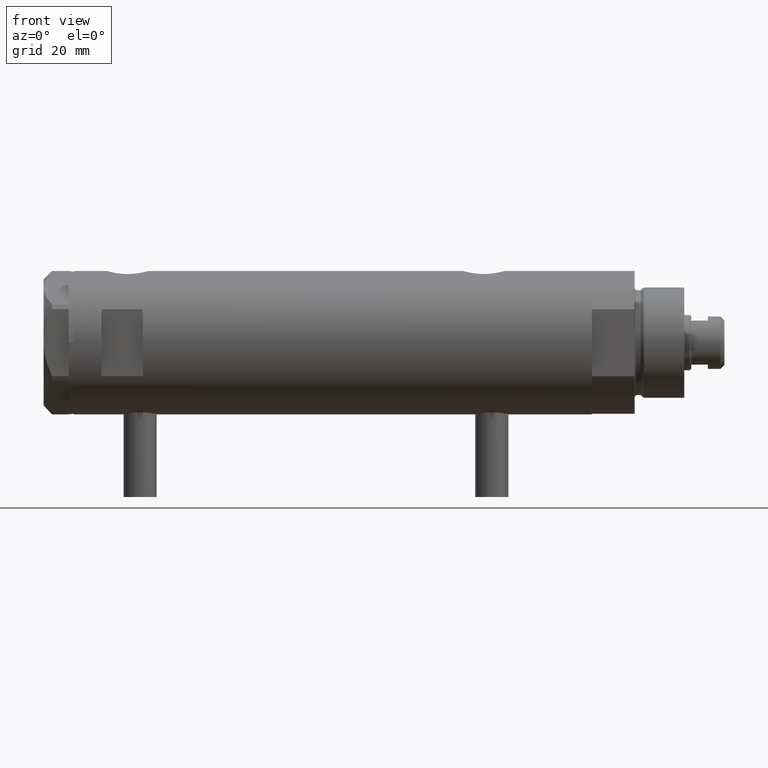
[diagram: clean part render]
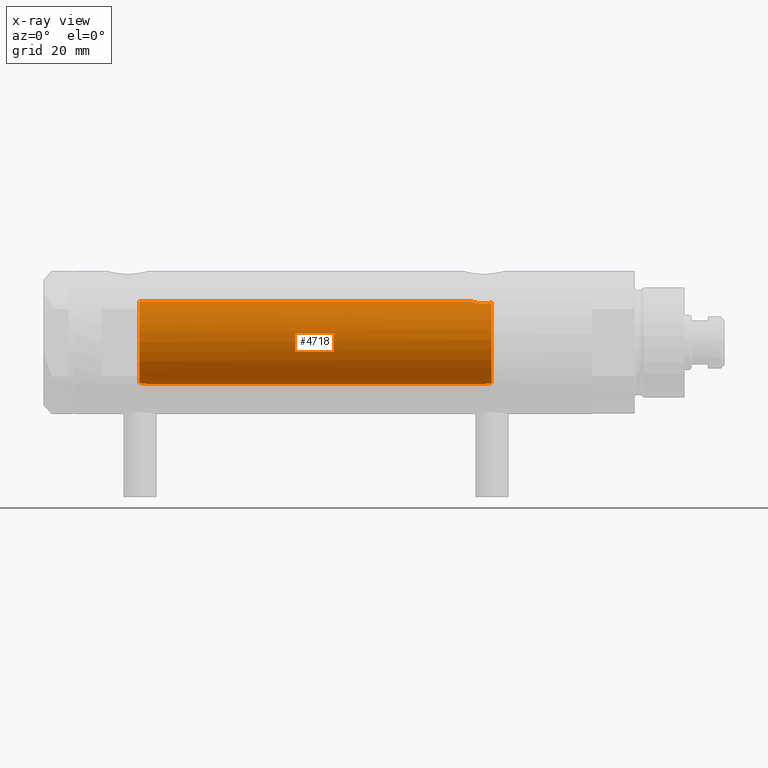
[diagram: x-ray — body ghosted, one internal face saturated and labeled with its STEP entity id]
A machine part, front view, then the same camera in x-ray: the body is ghosted and one INTERNAL B-rep face — a face not visible from any outside direction — is saturated and labeled: STEP entity #4718.
In plain terms, the highlighted cylindrical surface (partial cylindrical patch) has radius 15 mm, axis along (1, 0, -0).
Its self-contained STEP definition (entity closure, byte-faithful):
#3 = VERTEX_POINT ( 'NONE', #1093 ) ;
#35 = CARTESIAN_POINT ( 'NONE',  ( 14.39424372609267699, -4.221002267729138779, -57.17893131093291004 ) ) ;
#47 = VERTEX_POINT ( 'NONE', #3550 ) ;
#143 = CARTESIAN_POINT ( 'NONE',  ( -14.91608554980932233, -1.590576762727820004, 68.01369720243329198 ) ) ;
#155 = DIRECTION ( 'NONE',  ( -0.000000000000000000, -0.000000000000000000, -1.000000000000000000 ) ) ;
#157 = ORIENTED_EDGE ( 'NONE', *, *, #2194, .F. ) ;
#160 = VERTEX_POINT ( 'NONE', #435 ) ;
#169 = CARTESIAN_POINT ( 'NONE',  ( -14.94313933514151493, -1.312299271472201934, 67.81526966946925938 ) ) ;
#195 = CARTESIAN_POINT ( 'NONE',  ( -14.79053751558745589, -2.497999199359361544, -57.55000000000000426 ) ) ;
#196 = ORIENTED_EDGE ( 'NONE', *, *, #595, .F. ) ;
#245 = CARTESIAN_POINT ( 'NONE',  ( -14.79155164274526157, -2.491987158875418107, 70.15000000000000568 ) ) ;
#322 = CARTESIAN_POINT ( 'NONE',  ( 14.64727859494137618, -3.248701865452408910, -51.10174013696656914 ) ) ;
#354 = CARTESIAN_POINT ( 'NONE',  ( -14.80379558280398733, -2.418854260473054296, 69.29535450491660242 ) ) ;
#376 = CARTESIAN_POINT ( 'NONE',  ( 14.30602371879161794, -4.510400617436904902, -56.58665028800272978 ) ) ;
#435 = CARTESIAN_POINT ( 'NONE',  ( 14.82638779339053769, -2.275571356824481750, 70.15000000000000568 ) ) ;
#468 = CARTESIAN_POINT ( 'NONE',  ( 15.00000000000000000, 1.836970198721029589E-15, 93.95000000000001705 ) ) ;
#491 = CARTESIAN_POINT ( 'NONE',  ( 14.93900636919600089, -1.364886281976675386, 69.77622504971311912 ) ) ;
#499 = CARTESIAN_POINT ( 'NONE',  ( -15.00000000000000000, 0.000000000000000000, 93.95000000000001705 ) ) ;
#505 = CARTESIAN_POINT ( 'NONE',  ( -14.99999999999999822, -0.1716226368084279585, 67.45000000000001705 ) ) ;
#560 = CARTESIAN_POINT ( 'NONE',  ( 0.000000000000000000, 0.000000000000000000, -57.55000000000000426 ) ) ;
#576 = CARTESIAN_POINT ( 'NONE',  ( 0.000000000000000000, 0.000000000000000000, 93.95000000000001705 ) ) ;
#595 = EDGE_CURVE ( 'NONE', #3, #4072, #969, .T. ) ;
#605 = VERTEX_POINT ( 'NONE', #245 ) ;
#719 = CARTESIAN_POINT ( 'NONE',  ( 14.49994286062941562, -3.853373987417222590, -51.74743896782911179 ) ) ;
#742 = CARTESIAN_POINT ( 'NONE',  ( 14.33349657381506503, -4.422893686125040524, -56.78827841538882382 ) ) ;
#881 = CARTESIAN_POINT ( 'NONE',  ( -15.00000000000000000, 3.061618116097013428E-16, 67.45000000000001705 ) ) ;
#894 = DIRECTION ( 'NONE',  ( -1.000000000000000000, 0.000000000000000000, 0.000000000000000000 ) ) ;
#915 = CARTESIAN_POINT ( 'NONE',  ( 14.87720562886504005, -1.924385875533404233, 69.97741675737691480 ) ) ;
#924 = DIRECTION ( 'NONE',  ( -0.000000000000000000, -0.000000000000000000, -1.000000000000000000 ) ) ;
#956 = LINE ( 'NONE', #499, #4460 ) ;
#958 = DIRECTION ( 'NONE',  ( 0.000000000000000000, 0.000000000000000000, -1.000000000000000000 ) ) ;
#963 = CARTESIAN_POINT ( 'NONE',  ( -14.87260732106556560, -1.954338522023921332, 68.38146298750770313 ) ) ;
#969 = B_SPLINE_CURVE_WITH_KNOTS ( 'NONE', 3,
 ( #4686, #1091, #2684, #1917, #1894, #4640, #3491, #2311, #3099, #2287, #1117, #3938, #3516, #5131, #1534, #1041 ),
 .UNSPECIFIED., .F., .F.,
 ( 4, 2, 2, 2, 2, 2, 2, 4 ),
 ( 0.000000000000000000, 0.0004769863284873110182, 0.0009539726569746220363, 0.001430958985461933163, 0.001907945313949244073, 0.002384931642436555199, 0.002861917970923867193, 0.003815890627898489880 ),
 .UNSPECIFIED. ) ;
#980 = EDGE_LOOP ( 'NONE', ( #3953, #1914, #4259, #3457, #196, #157, #2738, #1272 ) ) ;
#989 = CARTESIAN_POINT ( 'NONE',  ( -14.95581892566389470, -1.161262481484107045, 67.72937042154404708 ) ) ;
#1041 = CARTESIAN_POINT ( 'NONE',  ( -14.79053751558745589, -2.497999199359361544, -57.55000000000000426 ) ) ;
#1091 = CARTESIAN_POINT ( 'NONE',  ( -15.00000000000000355, -0.1613061104920440469, -55.15000000000000568 ) ) ;
#1093 = CARTESIAN_POINT ( 'NONE',  ( -15.00000000000000000, 0.000000000000000000, -55.15000000000000568 ) ) ;
#1117 = CARTESIAN_POINT ( 'NONE',  ( -14.87290636797879984, -1.950714596786577326, -56.07831246618854948 ) ) ;
#1172 = DIRECTION ( 'NONE',  ( 0.000000000000000000, 0.000000000000000000, 1.000000000000000000 ) ) ;
#1182 = CARTESIAN_POINT ( 'NONE',  ( 15.00000000000000000, 5.959273468635536151E-16, -49.88499999999999801 ) ) ;
#1196 = CARTESIAN_POINT ( 'NONE',  ( 14.30772250772359833, -4.505024017690381299, -52.90010806953218037 ) ) ;
#1203 = CIRCLE ( 'NONE', #1789, 15.00000000000000000 ) ;
#1254 = CARTESIAN_POINT ( 'NONE',  ( -14.79155164274526157, -2.491987158875418107, 70.15000000000000568 ) ) ;
#1272 = ORIENTED_EDGE ( 'NONE', *, *, #3447, .T. ) ;
#1382 = DIRECTION ( 'NONE',  ( -1.000000000000000000, 0.000000000000000000, 0.000000000000000000 ) ) ;
#1417 = CARTESIAN_POINT ( 'NONE',  ( 15.00000000000000000, 5.959273468635536151E-16, -49.88499999999999801 ) ) ;
#1441 = EDGE_CURVE ( 'NONE', #605, #3424, #3194, .T. ) ;
#1534 = CARTESIAN_POINT ( 'NONE',  ( -14.79268570220017764, -2.485279885960844037, -57.23227165314103360 ) ) ;
#1535 = CARTESIAN_POINT ( 'NONE',  ( 14.23846660849503820, -4.718934182878723682, -55.95401121469809880 ) ) ;
#1563 = CARTESIAN_POINT ( 'NONE',  ( 14.25977760983849052, -4.654557688538888627, -53.31736805897653397 ) ) ;
#1564 = DIRECTION ( 'NONE',  ( 1.000000000000000000, 0.000000000000000000, 0.000000000000000000 ) ) ;
#1611 = VECTOR ( 'NONE', #2381, 1000.000000000000000 ) ;
#1640 = CARTESIAN_POINT ( 'NONE',  ( 14.46277203719950677, -3.978470183374504199, -57.55000000000000426 ) ) ;
#1725 = CARTESIAN_POINT ( 'NONE',  ( 14.81710879718118434, -2.343063746046468943, -50.48067662538954181 ) ) ;
#1754 = CARTESIAN_POINT ( 'NONE',  ( 14.98404828787190723, -0.7909490205761857684, 69.63356230794190083 ) ) ;
#1789 = AXIS2_PLACEMENT_3D ( 'NONE', #560, #958, #1382 ) ;
#1800 = CARTESIAN_POINT ( 'NONE',  ( -14.99695275358353719, -0.3460123648701089460, 67.46810396824248812 ) ) ;
#1894 = CARTESIAN_POINT ( 'NONE',  ( -14.98007298506453111, -0.7870736506658194687, -55.27174868555714937 ) ) ;
#1914 = ORIENTED_EDGE ( 'NONE', *, *, #2588, .T. ) ;
#1917 = CARTESIAN_POINT ( 'NONE',  ( -14.98749134158486740, -0.6320459414166014200, -55.22599747929444192 ) ) ;
#2060 = VERTEX_POINT ( 'NONE', #3481 ) ;
#2089 = CARTESIAN_POINT ( 'NONE',  ( 14.82638779339053769, -2.275571356824481750, 70.15000000000000568 ) ) ;
#2194 = EDGE_CURVE ( 'NONE', #3424, #3, #956, .T. ) ;
#2287 = CARTESIAN_POINT ( 'NONE',  ( -14.88625129008226722, -1.847379311388058998, -55.95812992433160815 ) ) ;
#2311 = CARTESIAN_POINT ( 'NONE',  ( -14.92627313122705779, -1.491421694539938336, -55.63730514635739866 ) ) ;
#2339 = CARTESIAN_POINT ( 'NONE',  ( -14.78989771875220072, -2.501882951377192299, 69.80631597653685105 ) ) ;
#2381 = DIRECTION ( 'NONE',  ( -0.000000000000000000, -0.000000000000000000, -1.000000000000000000 ) ) ;
#2450 = CIRCLE ( 'NONE', #3711, 15.00000000000000000 ) ;
#2485 = LINE ( 'NONE', #468, #1611 ) ;
#2498 = CARTESIAN_POINT ( 'NONE',  ( -14.82167156606024250, -2.306788152106011847, 68.97115114601642460 ) ) ;
#2501 = CARTESIAN_POINT ( 'NONE',  ( 14.92307637240704032, -1.532123959568890914, -50.12726557582076481 ) ) ;
#2539 = FACE_OUTER_BOUND ( 'NONE', #980, .T. ) ;
#2588 = EDGE_CURVE ( 'NONE', #2060, #4998, #2485, .T. ) ;
#2684 = CARTESIAN_POINT ( 'NONE',  ( -14.99740058099026108, -0.3199290537848252236, -55.16546469274586428 ) ) ;
#2738 = ORIENTED_EDGE ( 'NONE', *, *, #1441, .F. ) ;
#2794 = CARTESIAN_POINT ( 'NONE',  ( 14.33594561531103828, -4.414979644548148840, -52.69453393419242104 ) ) ;
#2829 = B_SPLINE_CURVE_WITH_KNOTS ( 'NONE', 3,
 ( #2992, #2966, #1754, #491, #3351, #915, #4600, #2089 ),
 .UNSPECIFIED., .F., .F.,
 ( 4, 2, 2, 4 ),
 ( 0.000000000000000000, 0.001182100180564259239, 0.001773150270846393954, 0.002364200361128528886 ),
 .UNSPECIFIED. ) ;
#2946 = B_SPLINE_CURVE_WITH_KNOTS ( 'NONE', 3,
 ( #1640, #4018, #35, #742, #376, #3578, #1535, #5183, #3911, #3547, #5160, #3178, #4788, #3231, #1563, #1196, #2794, #4316, #719, #322, #4954, #1725, #3320, #2957, #2501, #4593, #3713, #3010, #4106, #1417 ),
 .UNSPECIFIED., .F., .F.,
 ( 4, 2, 2, 2, 2, 2, 2, 2, 2, 2, 2, 2, 2, 2, 4 ),
 ( 0.004672505804584288491, 0.005337629501999293681, 0.006002753199414298003, 0.006667876896829303193, 0.007333000594244307516, 0.007998124291659313573, 0.008663247989074317895, 0.009328371686489322218, 0.009993495383904326540, 0.01132374277873435427, 0.01265399017356438199, 0.01331911387097939499, 0.01398423756839440972, 0.01464936126580942445, 0.01531448496322443745 ),
 .UNSPECIFIED. ) ;
#2957 = CARTESIAN_POINT ( 'NONE',  ( 14.90017778876745247, -1.739641523727902594, -50.20130925695126933 ) ) ;
#2966 = CARTESIAN_POINT ( 'NONE',  ( 15.00000000000000178, -0.3999014018875932663, 69.58499999999999375 ) ) ;
#2992 = CARTESIAN_POINT ( 'NONE',  ( 15.00000000000000000, 0.000000000000000000, 69.58500000000000796 ) ) ;
#3010 = CARTESIAN_POINT ( 'NONE',  ( 14.99508877558422704, -0.4434836953032598172, -49.90007684727663673 ) ) ;
#3099 = CARTESIAN_POINT ( 'NONE',  ( -14.91288509639097981, -1.618377549727003650, -55.73790984008952165 ) ) ;
#3158 = CARTESIAN_POINT ( 'NONE',  ( -14.78924132900106692, -2.505700361584517477, 69.97913437470934639 ) ) ;
#3178 = CARTESIAN_POINT ( 'NONE',  ( 14.19858338301462908, -4.837406781463696070, -54.18614104090498529 ) ) ;
#3194 = B_SPLINE_CURVE_WITH_KNOTS ( 'NONE', 3,
 ( #1254, #3158, #2339, #3945, #354, #2498, #4903, #3370, #963, #3788, #143, #169, #989, #4079, #4187, #1800, #505, #881 ),
 .UNSPECIFIED., .F., .F.,
 ( 4, 2, 2, 2, 2, 2, 2, 2, 4 ),
 ( 0.003715686714229627860, 0.004229951999599983539, 0.004744217284970339218, 0.005258482570340694898, 0.005772747855711050577, 0.006287013141081406256, 0.006801278426451761935, 0.007315543711822117615, 0.007829808997192473294 ),
 .UNSPECIFIED. ) ;
#3221 = EDGE_CURVE ( 'NONE', #47, #4998, #2946, .T. ) ;
#3231 = CARTESIAN_POINT ( 'NONE',  ( 14.23984499268010673, -4.714778477509579346, -53.53008258614764969 ) ) ;
#3320 = CARTESIAN_POINT ( 'NONE',  ( 14.84733308118440043, -2.144376633039216884, -50.37751912952714406 ) ) ;
#3351 = CARTESIAN_POINT ( 'NONE',  ( 14.92029983160078466, -1.555365312915180098, 69.83609703141412695 ) ) ;
#3370 = CARTESIAN_POINT ( 'NONE',  ( -14.85859683553260879, -2.056701007386123603, 68.51843972450896558 ) ) ;
#3424 = VERTEX_POINT ( 'NONE', #3997 ) ;
#3447 = EDGE_CURVE ( 'NONE', #605, #160, #2450, .T. ) ;
#3457 = ORIENTED_EDGE ( 'NONE', *, *, #3570, .T. ) ;
#3481 = CARTESIAN_POINT ( 'NONE',  ( 15.00000000000000000, 0.000000000000000000, 69.58500000000000796 ) ) ;
#3491 = CARTESIAN_POINT ( 'NONE',  ( -14.95054302956255121, -1.224431043437663513, -55.46458290830102555 ) ) ;
#3516 = CARTESIAN_POINT ( 'NONE',  ( -14.83575030094399949, -2.214690538106012685, -56.47938890130203049 ) ) ;
#3547 = CARTESIAN_POINT ( 'NONE',  ( 14.18781489734107737, -4.868896704194243696, -54.85545969036061109 ) ) ;
#3550 = CARTESIAN_POINT ( 'NONE',  ( 14.46277203719950677, -3.978470183374504199, -57.55000000000000426 ) ) ;
#3570 = EDGE_CURVE ( 'NONE', #47, #4072, #1203, .T. ) ;
#3578 = CARTESIAN_POINT ( 'NONE',  ( 14.25856516724843992, -4.658255869285516049, -56.17044016644938864 ) ) ;
#3692 = CYLINDRICAL_SURFACE ( 'NONE', #4990, 15.00000000000000000 ) ;
#3711 = AXIS2_PLACEMENT_3D ( 'NONE', #4870, #1172, #1564 ) ;
#3713 = CARTESIAN_POINT ( 'NONE',  ( 14.97537530859972321, -0.8874117095427787039, -49.96137464055829014 ) ) ;
#3788 = CARTESIAN_POINT ( 'NONE',  ( -14.90147761301467533, -1.720422196468680776, 68.12794212931564175 ) ) ;
#3911 = CARTESIAN_POINT ( 'NONE',  ( 14.19797987272029438, -4.839174951492910104, -55.29741451501411831 ) ) ;
#3938 = CARTESIAN_POINT ( 'NONE',  ( -14.84760220014584853, -2.134792770974418552, -56.33921818480345678 ) ) ;
#3945 = CARTESIAN_POINT ( 'NONE',  ( -14.79723843696374708, -2.458094276708254977, 69.46231574989084834 ) ) ;
#3953 = ORIENTED_EDGE ( 'NONE', *, *, #4837, .F. ) ;
#3997 = CARTESIAN_POINT ( 'NONE',  ( -15.00000000000000000, 3.061618116097013428E-16, 67.45000000000001705 ) ) ;
#4018 = CARTESIAN_POINT ( 'NONE',  ( 14.42775250319759728, -4.105775281508733165, -57.36911445102907692 ) ) ;
#4072 = VERTEX_POINT ( 'NONE', #195 ) ;
#4079 = CARTESIAN_POINT ( 'NONE',  ( -14.97699254061833152, -0.8454257663520204913, 67.59097868826833633 ) ) ;
#4106 = CARTESIAN_POINT ( 'NONE',  ( 15.00000000000000355, -0.2216692655473436746, -49.88499999999999091 ) ) ;
#4187 = CARTESIAN_POINT ( 'NONE',  ( -14.98541608527169977, -0.6823644196029169384, 67.53879464417552470 ) ) ;
#4259 = ORIENTED_EDGE ( 'NONE', *, *, #3221, .F. ) ;
#4316 = CARTESIAN_POINT ( 'NONE',  ( 14.42796883436189859, -4.108435602805832865, -52.10726922759030799 ) ) ;
#4460 = VECTOR ( 'NONE', #924, 1000.000000000000000 ) ;
#4593 = CARTESIAN_POINT ( 'NONE',  ( 14.96064712090283777, -1.106639041422191827, -50.00738179736370626 ) ) ;
#4600 = CARTESIAN_POINT ( 'NONE',  ( 14.85289483991917514, -2.102865829523694607, 70.05860377881609224 ) ) ;
#4640 = CARTESIAN_POINT ( 'NONE',  ( -14.96154495298568854, -1.083625483837070469, -55.39138979525009887 ) ) ;
#4686 = CARTESIAN_POINT ( 'NONE',  ( -15.00000000000000000, 0.000000000000000000, -55.15000000000000568 ) ) ;
#4718 = ADVANCED_FACE ( 'NONE', ( #2539 ), #3692, .F. ) ;
#4788 = CARTESIAN_POINT ( 'NONE',  ( 14.20926245015526135, -4.806160851464706063, -53.96377327795616452 ) ) ;
#4837 = EDGE_CURVE ( 'NONE', #2060, #160, #2829, .T. ) ;
#4870 = CARTESIAN_POINT ( 'NONE',  ( 0.000000000000000000, 0.000000000000000000, 70.15000000000000568 ) ) ;
#4903 = CARTESIAN_POINT ( 'NONE',  ( -14.83314878996174357, -2.232849285003160489, 68.81256080311607093 ) ) ;
#4954 = CARTESIAN_POINT ( 'NONE',  ( 14.72015646623406582, -2.909233045280603225, -50.82572079632733875 ) ) ;
#4990 = AXIS2_PLACEMENT_3D ( 'NONE', #576, #155, #894 ) ;
#4998 = VERTEX_POINT ( 'NONE', #1182 ) ;
#5131 = CARTESIAN_POINT ( 'NONE',  ( -14.80570803900864263, -2.410056876876582432, -56.91354637206101330 ) ) ;
#5160 = CARTESIAN_POINT ( 'NONE',  ( 14.18786347641749579, -4.868757996482115047, -54.63322300400290743 ) ) ;
#5183 = CARTESIAN_POINT ( 'NONE',  ( 14.20819413761015859, -4.809312895991456394, -55.51713251522166814 ) ) ;